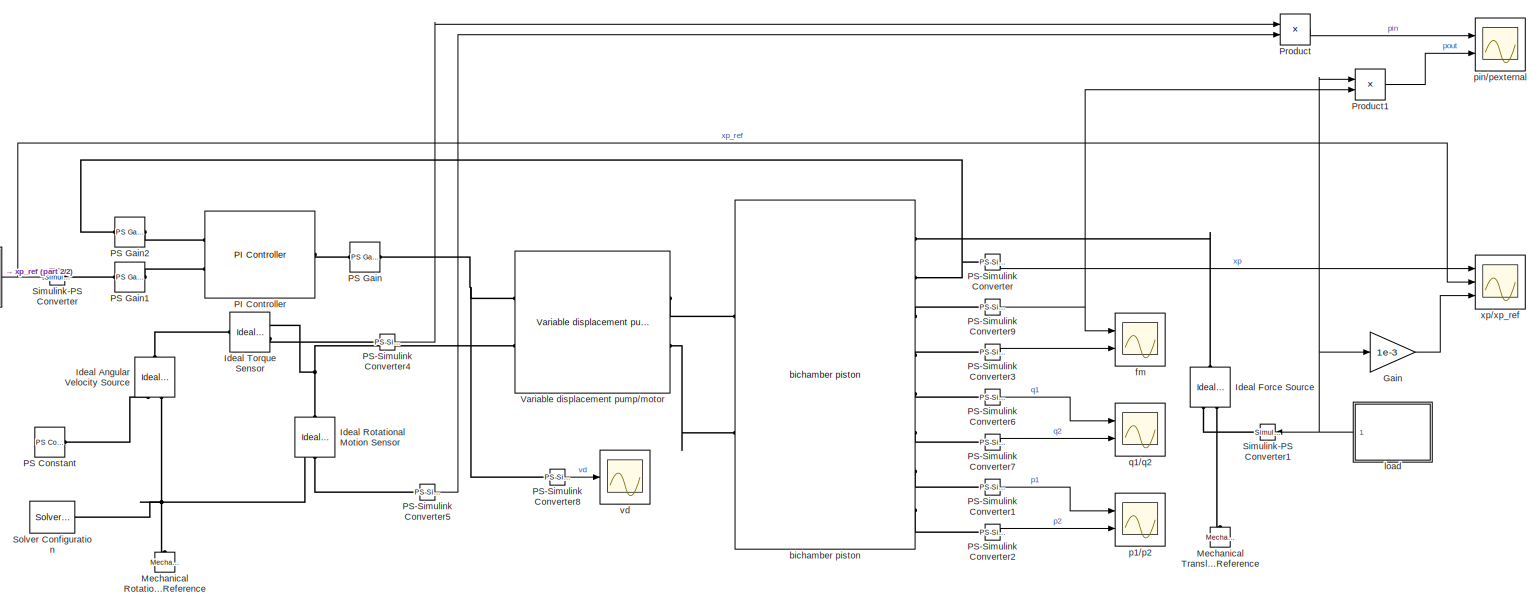
[diagram: root canvas - part 1/2, most of the canvas]
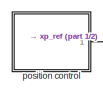
[diagram: root canvas - part 2/2, middle left region]
MODEL slx_c4d5f6242f92
KIND model
CONFIG AbsTol = auto
CONFIG EnableMultiTasking = off
CONFIG FixedStep = auto
CONFIG MaxStep = tsample
CONFIG MinStep = auto
CONFIG RelTol = auto
CONFIG SampleTimeConstraint = Unconstrained
CONFIG Solver = daessc
CONFIG SolverName = daessc
CONFIG StartTime = 0.0
CONFIG StopTime = 200
BLOCK [Gain] Gain
  Gain = 1e-3
BLOCK [Reference] Ideal Angular Velocity Source  REF=fl_lib/Mechanical/Mechanical Sources/Ideal Angular
Velocity Source
  NameLocation = right
  Ports = [0, 0, 0, 0, 0, 1, 2]
  SourceBlock = fl_lib/Mechanical/Mechanical Sources/Ideal Angular\nVelocity Source
  SourceProductBaseCode = SS
  SourceType = Ideal Angular\nVelocity Source
BLOCK [Reference] Ideal Force Source  REF=fl_lib/Mechanical/Mechanical Sources/Ideal Force Source
  NameLocation = right
  Ports = [0, 0, 0, 0, 0, 1, 2]
  SourceBlock = fl_lib/Mechanical/Mechanical Sources/Ideal Force Source
  SourceProductBaseCode = SS
  SourceType = Ideal Force Source
BLOCK [Reference] Ideal Rotational Motion Sensor  REF=fl_lib/Mechanical/Mechanical Sensors/Ideal Rotational
Motion Sensor
  NameLocation = left
  Ports = [0, 0, 0, 0, 0, 1, 3]
  SourceBlock = fl_lib/Mechanical/Mechanical Sensors/Ideal Rotational\nMotion Sensor
  SourceProductBaseCode = SS
  SourceType = Ideal Rotational\nMotion Sensor
BLOCK [Reference] Ideal Torque Sensor  REF=fl_lib/Mechanical/Mechanical Sensors/Ideal Torque Sensor
  Ports = [0, 0, 0, 0, 0, 1, 2]
  SourceBlock = fl_lib/Mechanical/Mechanical Sensors/Ideal Torque Sensor
  SourceProductBaseCode = SS
  SourceType = Ideal Torque Sensor
BLOCK [Reference] Mechanical Rotational Reference  REF=fl_lib/Mechanical/Rotational Elements/Mechanical
Rotational Reference
  NameLocation = right
  Ports = [0, 0, 0, 0, 0, 1]
  SourceBlock = fl_lib/Mechanical/Rotational Elements/Mechanical\nRotational Reference
  SourceProductBaseCode = SS
  SourceType = Mechanical\nRotational Reference
BLOCK [Reference] Mechanical Translational Reference  REF=fl_lib/Mechanical/Translational
Elements/Mechanical
Translational
Reference
  NameLocation = right
  Ports = [0, 0, 0, 0, 0, 1]
  SourceBlock = fl_lib/Mechanical/Translational\nElements/Mechanical\nTranslational\nReference
  SourceProductBaseCode = SS
  SourceType = Mechanical\nTranslational\nReference
BLOCK [Reference] PI Controller  REF=pi_ctrl_lib/PI Controller
  Ports = [0, 0, 0, 0, 0, 2, 1]
  SourceBlock = pi_ctrl_lib/PI Controller
  SourceType = PI Controller
BLOCK [Reference] PS Constant  REF=fl_lib/Physical Signals/Sources/PS Constant
  Ports = [0, 0, 0, 0, 0, 0, 1]
  SourceBlock = fl_lib/Physical Signals/Sources/PS Constant
  SourceProductBaseCode = SS
  SourceType = PS Constant
BLOCK [Reference] PS Gain  REF=fl_lib/Physical Signals/Functions/PS Gain
  Ports = [0, 0, 0, 0, 0, 1, 1]
  SourceBlock = fl_lib/Physical Signals/Functions/PS Gain
  SourceProductBaseCode = SS
  SourceType = PS Gain
BLOCK [Reference] PS Gain1  REF=fl_lib/Physical Signals/Functions/PS Gain
  Ports = [0, 0, 0, 0, 0, 1, 1]
  SourceBlock = fl_lib/Physical Signals/Functions/PS Gain
  SourceProductBaseCode = SS
  SourceType = PS Gain
BLOCK [Reference] PS Gain2  REF=fl_lib/Physical Signals/Functions/PS Gain
  Ports = [0, 0, 0, 0, 0, 1, 1]
  SourceBlock = fl_lib/Physical Signals/Functions/PS Gain
  SourceProductBaseCode = SS
  SourceType = PS Gain
BLOCK [Reference] PS-Simulink Converter  REF=nesl_utility/PS-Simulink
Converter
  Ports = [0, 1, 0, 0, 0, 1]
  SourceBlock = nesl_utility/PS-Simulink\nConverter
  SourceProductBaseCode = SS
  SourceType = PS-Simulink\nConverter
BLOCK [Reference] PS-Simulink Converter1  REF=nesl_utility/PS-Simulink
Converter
  Ports = [0, 1, 0, 0, 0, 1]
  SourceBlock = nesl_utility/PS-Simulink\nConverter
  SourceProductBaseCode = SS
  SourceType = PS-Simulink\nConverter
BLOCK [Reference] PS-Simulink Converter2  REF=nesl_utility/PS-Simulink
Converter
  Ports = [0, 1, 0, 0, 0, 1]
  SourceBlock = nesl_utility/PS-Simulink\nConverter
  SourceProductBaseCode = SS
  SourceType = PS-Simulink\nConverter
BLOCK [Reference] PS-Simulink Converter3  REF=nesl_utility/PS-Simulink
Converter
  Ports = [0, 1, 0, 0, 0, 1]
  SourceBlock = nesl_utility/PS-Simulink\nConverter
  SourceProductBaseCode = SS
  SourceType = PS-Simulink\nConverter
BLOCK [Reference] PS-Simulink Converter4  REF=nesl_utility/PS-Simulink
Converter
  Ports = [0, 1, 0, 0, 0, 1]
  SourceBlock = nesl_utility/PS-Simulink\nConverter
  SourceProductBaseCode = SS
  SourceType = PS-Simulink\nConverter
BLOCK [Reference] PS-Simulink Converter5  REF=nesl_utility/PS-Simulink
Converter
  Ports = [0, 1, 0, 0, 0, 1]
  SourceBlock = nesl_utility/PS-Simulink\nConverter
  SourceProductBaseCode = SS
  SourceType = PS-Simulink\nConverter
BLOCK [Reference] PS-Simulink Converter6  REF=nesl_utility/PS-Simulink
Converter
  Ports = [0, 1, 0, 0, 0, 1]
  SourceBlock = nesl_utility/PS-Simulink\nConverter
  SourceProductBaseCode = SS
  SourceType = PS-Simulink\nConverter
BLOCK [Reference] PS-Simulink Converter7  REF=nesl_utility/PS-Simulink
Converter
  Ports = [0, 1, 0, 0, 0, 1]
  SourceBlock = nesl_utility/PS-Simulink\nConverter
  SourceProductBaseCode = SS
  SourceType = PS-Simulink\nConverter
BLOCK [Reference] PS-Simulink Converter8  REF=nesl_utility/PS-Simulink
Converter
  Ports = [0, 1, 0, 0, 0, 1]
  SourceBlock = nesl_utility/PS-Simulink\nConverter
  SourceProductBaseCode = SS
  SourceType = PS-Simulink\nConverter
BLOCK [Reference] PS-Simulink Converter9  REF=nesl_utility/PS-Simulink
Converter
  Ports = [0, 1, 0, 0, 0, 1]
  SourceBlock = nesl_utility/PS-Simulink\nConverter
  SourceProductBaseCode = SS
  SourceType = PS-Simulink\nConverter
BLOCK [Product] Product
  Ports = [2, 1]
BLOCK [Product] Product1
  Ports = [2, 1]
BLOCK [Reference] Simulink-PS Converter  REF=nesl_utility/Simulink-PS
Converter
  Ports = [1, 0, 0, 0, 0, 0, 1]
  SourceBlock = nesl_utility/Simulink-PS\nConverter
  SourceProductBaseCode = SS
  SourceType = Simulink-PS\nConverter
BLOCK [Reference] Simulink-PS Converter1  REF=nesl_utility/Simulink-PS
Converter
  NameLocation = top
  Ports = [1, 0, 0, 0, 0, 0, 1]
  SourceBlock = nesl_utility/Simulink-PS\nConverter
  SourceProductBaseCode = SS
  SourceType = Simulink-PS\nConverter
BLOCK [Reference] Solver Configuration  REF=nesl_utility/Solver
Configuration
  Ports = [0, 0, 0, 0, 0, 0, 1]
  SourceBlock = nesl_utility/Solver\nConfiguration
  SourceProductBaseCode = SS
  SourceType = Solver\nConfiguration
BLOCK [Reference] Variable displacement pump//motor  REF=variable_displacement_pump_lib/Variable
displacement pump
  Ports = [0, 0, 0, 0, 0, 2, 2]
  SourceBlock = variable_displacement_pump_lib/Variable\ndisplacement pump
  SourceType = Variable\ndisplacement pump
BLOCK [Reference] bichamber piston  REF=bichamber_piston_lib/bichamber piston
  Ports = [0, 0, 0, 0, 0, 2, 8]
  SourceBlock = bichamber_piston_lib/bichamber piston
  SourceType = bichamber piston
BLOCK [Scope] fm
  Floating = off
  NumInputPorts = 2
  Ports = [2]
  ScopeSpecificationString = Simulink.scopes.TimeScopeBlockCfg('CurrentConfiguration', extmgr.ConfigurationSet(extmgr.Configuration('Core','General UI',true),extmgr.Configuration('Core','Source UI',true),extmgr.Configuration('Sources','WiredSimulink',true,'SampleTime','tsample','DataLoggingVariableName','ScopeData4'),extmgr.Configuration('Visuals','Time Domain',true,'SerializedDisplays',{struct('MinYLimReal','-0.12639','MaxYL...<+2364ch>
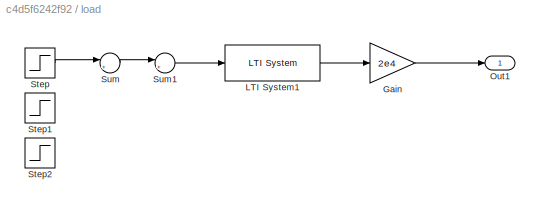
BLOCK [SubSystem] load
  Ports = [0, 1]
  RequestExecContextInheritance = off
BLOCK [Gain] load/Gain
  Gain = 2e4
BLOCK [Reference] load/LTI System1  REF=cstblocks/LTI System
  Ports = [1, 1]
  SourceBlock = cstblocks/LTI System
  SourceProductBaseCode = CT
  SourceType = LTI Block
BLOCK [Outport] load/Out1
BLOCK [Step] load/Step
  SampleTime = 0
  Time = 10
BLOCK [Step] load/Step1
  After = -2
  SampleTime = 0
  Time = 60
BLOCK [Step] load/Step2
  After = 0.25
  SampleTime = 0
  Time = 125
BLOCK [Sum] load/Sum
  Inputs = |++
  Ports = [2, 1]
BLOCK [Sum] load/Sum1
  Inputs = |++
  Ports = [2, 1]
BLOCK [Scope] p1//p2
  Floating = off
  NumInputPorts = 2
  Ports = [2]
  ScopeSpecificationString = Simulink.scopes.TimeScopeBlockCfg('CurrentConfiguration', extmgr.ConfigurationSet(extmgr.Configuration('Core','General UI',true),extmgr.Configuration('Core','Source UI',true),extmgr.Configuration('Sources','WiredSimulink',true,'SampleTime','tsample','DataLoggingVariableName','ScopeData3'),extmgr.Configuration('Visuals','Time Domain',true,'SerializedDisplays',{struct('MinYLimReal','93.77','MaxYLimR...<+1743ch>
BLOCK [Scope] pin//pexternal
  Floating = off
  NumInputPorts = 2
  Ports = [2]
  ScopeSpecificationString = Simulink.scopes.TimeScopeBlockCfg('CurrentConfiguration', extmgr.ConfigurationSet(extmgr.Configuration('Core','General UI',true),extmgr.Configuration('Core','Source UI',true),extmgr.Configuration('Sources','WiredSimulink',true,'SampleTime','tsample','DataLoggingVariableName','ScopeData2'),extmgr.Configuration('Visuals','Time Domain',true,'SerializedDisplays',{struct('MinYLimReal','-2983.7153','Max...<+1829ch>
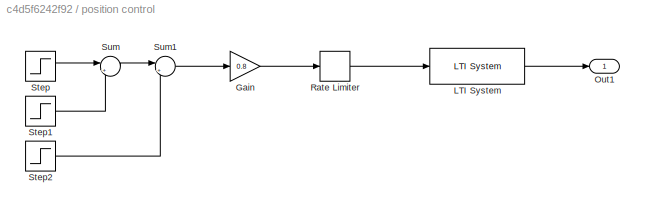
BLOCK [SubSystem] position control
  Ports = [0, 1]
  RequestExecContextInheritance = off
BLOCK [Gain] position control/Gain
  Gain = 0.8
BLOCK [Reference] position control/LTI System  REF=cstblocks/LTI System
  Ports = [1, 1]
  SourceBlock = cstblocks/LTI System
  SourceProductBaseCode = CT
  SourceType = LTI Block
BLOCK [Outport] position control/Out1
BLOCK [RateLimiter] position control/Rate Limiter
  FallingSlewLimit = -0.05
  RisingSlewLimit = 0.05
  SampleTimeMode = inherited
BLOCK [Step] position control/Step
  SampleTime = 0
  Time = 20
BLOCK [Step] position control/Step1
  After = -2
  SampleTime = 0
  Time = 60
BLOCK [Step] position control/Step2
  After = 2
  SampleTime = 0
  Time = 125
BLOCK [Sum] position control/Sum
  Inputs = |++
  Ports = [2, 1]
BLOCK [Sum] position control/Sum1
  Inputs = |++
  Ports = [2, 1]
BLOCK [Scope] q1//q2
  Floating = off
  NumInputPorts = 2
  Ports = [2]
  ScopeSpecificationString = Simulink.scopes.TimeScopeBlockCfg('CurrentConfiguration', extmgr.ConfigurationSet(extmgr.Configuration('Core','General UI',true),extmgr.Configuration('Core','Source UI',true),extmgr.Configuration('Sources','WiredSimulink',true,'SampleTime','tsample','DataLoggingVariableName','ScopeData3'),extmgr.Configuration('Visuals','Time Domain',true,'SerializedDisplays',{struct('MinYLimReal','-14.99997','MaxY...<+1730ch>
BLOCK [Scope] vd
  Floating = off
  NumInputPorts = 1
  Ports = [1]
  ScopeSpecificationString = Simulink.scopes.TimeScopeBlockCfg('CurrentConfiguration', extmgr.ConfigurationSet(extmgr.Configuration('Core','General UI',true),extmgr.Configuration('Core','Source UI',true),extmgr.Configuration('Sources','WiredSimulink',true,'SampleTime','tsample','DataLoggingVariableName','ScopeData1'),extmgr.Configuration('Visuals','Time Domain',true,'SerializedDisplays',{struct('MinYLimReal','-0.139','MaxYLim...<+1789ch>
BLOCK [Scope] xp//xp_ref
  Floating = off
  NumInputPorts = 3
  Ports = [3]
  ScopeSpecificationString = Simulink.scopes.TimeScopeBlockCfg('CurrentConfiguration', extmgr.ConfigurationSet(extmgr.Configuration('Core','General UI',true),extmgr.Configuration('Core','Source UI',true),extmgr.Configuration('Sources','WiredSimulink',true,'SampleTime','tsample','DataLoggingVariableName','ScopeData2'),extmgr.Configuration('Visuals','Time Domain',true,'SerializedDisplays',{struct('MinYLimReal','-1.15','MaxYLimR...<+1742ch>
LINE Gain:1 -> xp//xp_ref:3
LINE PS-Simulink Converter1:1 -> p1//p2:1
LINE PS-Simulink Converter2:1 -> p1//p2:2
LINE PS-Simulink Converter3:1 -> fm:2
LINE PS-Simulink Converter4:1 -> Product:1
LINE PS-Simulink Converter5:1 -> Product:2
LINE PS-Simulink Converter6:1 -> q1//q2:1
LINE PS-Simulink Converter7:1 -> q1//q2:2
LINE PS-Simulink Converter8:1 -> vd:1
NET PS-Simulink Converter9:1 -> Product1:2, fm:1
LINE PS-Simulink Converter:1 -> xp//xp_ref:1
LINE Product1:1 -> pin//pexternal:2
LINE Product:1 -> pin//pexternal:1
LINE load/Gain:1 -> load/Out1:1
LINE load/LTI System1:1 -> load/Gain:1
LINE load/Step:1 -> load/Sum:1
LINE load/Sum1:1 -> load/LTI System1:1
LINE load/Sum:1 -> load/Sum1:1
NET load:1 -> Gain:1, Product1:1, Simulink-PS Converter1:1
LINE position control/Gain:1 -> position control/Rate Limiter:1
LINE position control/LTI System:1 -> position control/Out1:1
LINE position control/Rate Limiter:1 -> position control/LTI System:1
LINE position control/Step1:1 -> position control/Sum:2
LINE position control/Step2:1 -> position control/Sum1:2
LINE position control/Step:1 -> position control/Sum:1
LINE position control/Sum1:1 -> position control/Gain:1
LINE position control/Sum:1 -> position control/Sum1:1
NET position control:1 -> Simulink-PS Converter:1, xp//xp_ref:2
PLINE Ideal Angular Velocity Source:LConn1 -- Ideal Torque Sensor:LConn1
PLINE Ideal Angular Velocity Source:RConn1 -- PS Constant:RConn1
PNET net1: Ideal Angular Velocity Source:RConn2 -- Ideal Rotational Motion Sensor:RConn1 -- Mechanical Rotational Reference:LConn1 -- Solver Configuration:RConn1
PLINE Ideal Force Source:LConn1 -- bichamber piston:RConn1
PLINE Ideal Force Source:RConn1 -- Simulink-PS Converter1:RConn1
PLINE Ideal Force Source:RConn2 -- Mechanical Translational Reference:LConn1
PNET net2: Ideal Rotational Motion Sensor:LConn1 -- Ideal Torque Sensor:RConn1 -- Variable displacement pump//motor:LConn2
PLINE Ideal Rotational Motion Sensor:RConn2 -- PS-Simulink Converter5:LConn1
PLINE Ideal Torque Sensor:RConn2 -- PS-Simulink Converter4:LConn1
PLINE PI Controller:LConn1 -- PS Gain2:RConn1
PLINE PI Controller:LConn2 -- PS Gain1:RConn1
PLINE PI Controller:RConn1 -- PS Gain:LConn1
PLINE PS Gain1:LConn1 -- Simulink-PS Converter:RConn1
PNET net3: PS Gain2:LConn1 -- PS-Simulink Converter:LConn1 -- bichamber piston:RConn2
PNET net4: PS Gain:RConn1 -- PS-Simulink Converter8:LConn1 -- Variable displacement pump//motor:LConn1
PLINE PS-Simulink Converter1:LConn1 -- bichamber piston:RConn7
PLINE PS-Simulink Converter2:LConn1 -- bichamber piston:RConn8
PLINE PS-Simulink Converter3:LConn1 -- bichamber piston:RConn4
PLINE PS-Simulink Converter6:LConn1 -- bichamber piston:RConn5
PLINE PS-Simulink Converter7:LConn1 -- bichamber piston:RConn6
PLINE PS-Simulink Converter9:LConn1 -- bichamber piston:RConn3
PLINE Variable displacement pump//motor:RConn1 -- bichamber piston:LConn1
PLINE Variable displacement pump//motor:RConn2 -- bichamber piston:LConn2
note: NET lines group one-source signal fan-out (src -> all destinations, sorted); 1:1 wires keep LINE; PNET lines group multi-terminal physical nets as a canonical sorted terminal list (undirected conserving connections); 2-terminal nets keep the pairwise PLINE form
